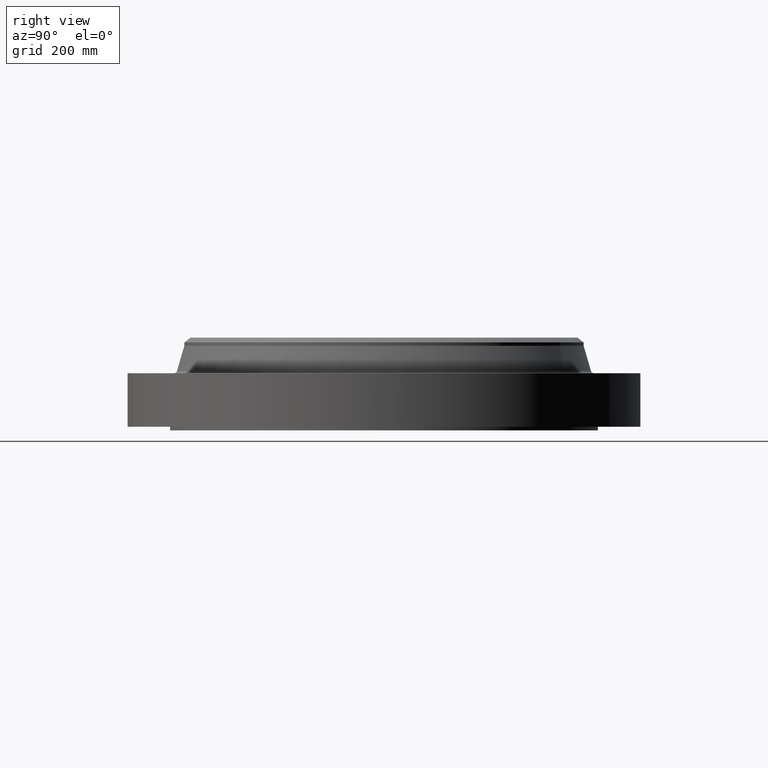
[diagram: clean part render]
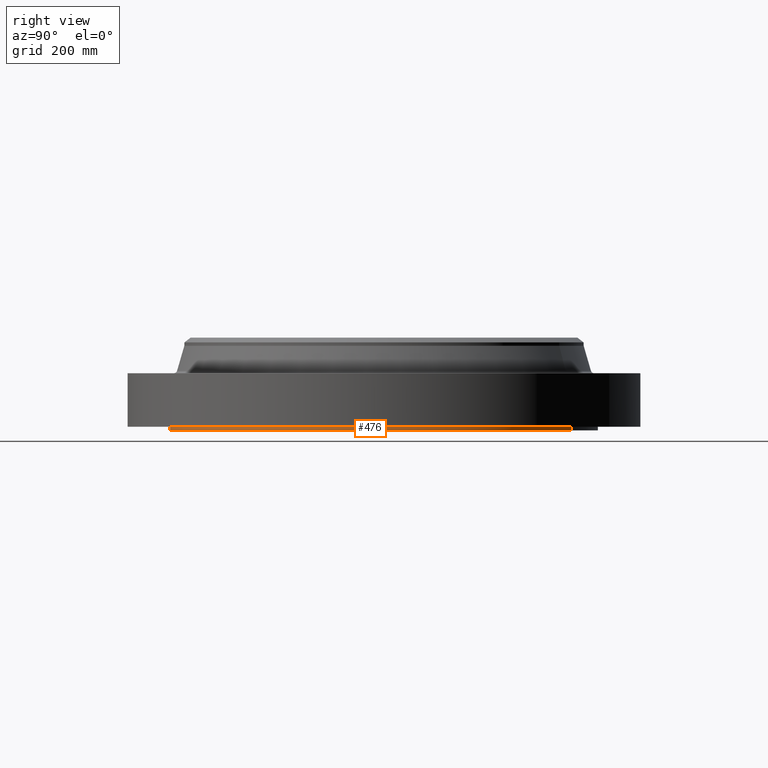
[diagram: same view with one face highlighted and labeled with its STEP entity id]
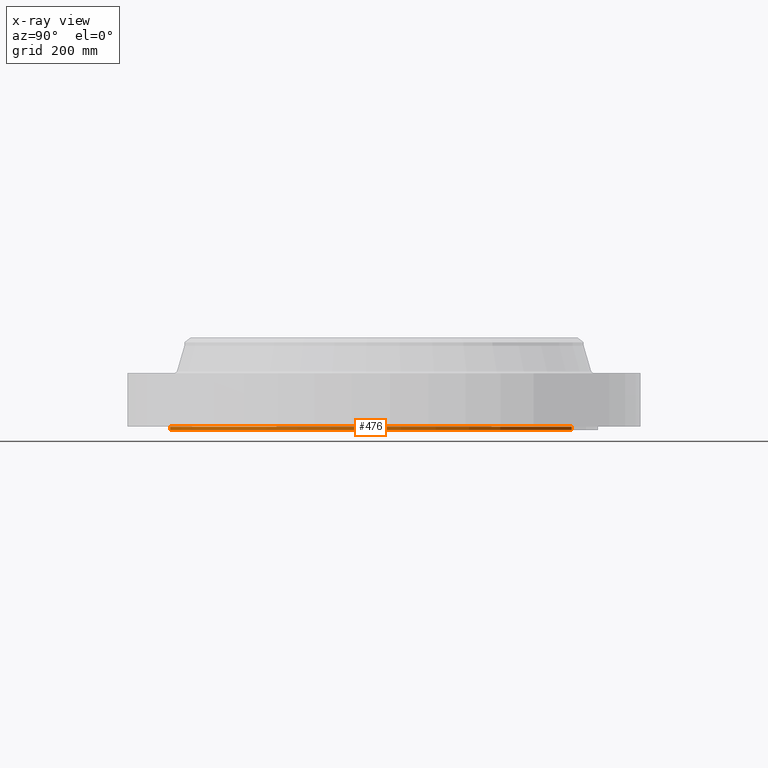
[diagram: x-ray of the same camera — body ghosted, the highlighted face saturated]
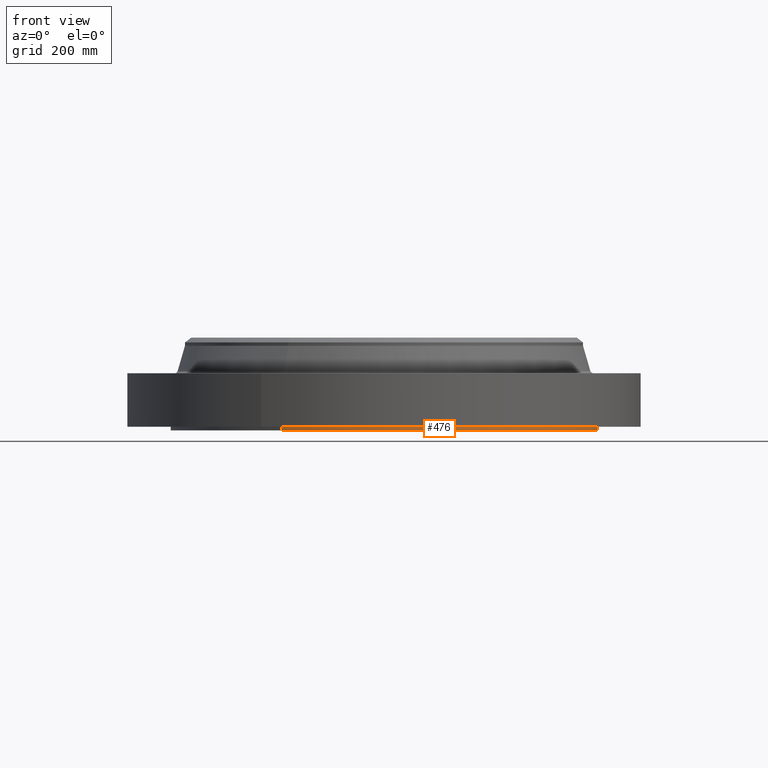
[diagram: same view with one face highlighted and labeled with its STEP entity id]
A machine part, right view. The second image highlights one B-rep face of the part: STEP entity #476.
The next image is the same camera in x-ray: the body ghosted, the highlighted face saturated — about 0% of this face is hidden behind the body in this view.
A second angle (front view) of the same face is appended — the face is thin or edge-on in the first view.
In plain terms, the highlighted cylindrical surface (partial cylindrical patch) has radius 381 mm, axis along (0, 0, -1).
Its self-contained STEP definition (entity closure, byte-faithful):
#422=AXIS2_PLACEMENT_3D('Circle Axis2P3D',#420,#421,$) ;
#437=AXIS2_PLACEMENT_3D('Cylinder Axis2P3D',#434,#435,#436) ;
#467=AXIS2_PLACEMENT_3D('Circle Axis2P3D',#465,#466,$) ;
#415=CARTESIAN_POINT('Vertex',(-7.19138307909,-13.1637384284,-0.250000000001)) ;
#417=CARTESIAN_POINT('Vertex',(7.19138307909,13.1637384284,-0.250000000001)) ;
#420=CARTESIAN_POINT('Axis2P3D Location',(0.,0.,-0.250000000001)) ;
#434=CARTESIAN_POINT('Axis2P3D Location',(0.,0.,3.05000000001)) ;
#439=CARTESIAN_POINT('Line Origine',(-7.19138307909,-13.1637384284,-0.125)) ;
#443=CARTESIAN_POINT('Vertex',(-7.19138307909,-13.1637384284,1.67844740731E-015)) ;
#450=CARTESIAN_POINT('Vertex',(7.19138307909,13.1637384284,1.67844740731E-015)) ;
#453=CARTESIAN_POINT('Line Origine',(7.19138307909,13.1637384284,-0.125)) ;
#465=CARTESIAN_POINT('Axis2P3D Location',(0.,0.,1.67844740731E-015)) ;
#421=DIRECTION('Axis2P3D Direction',(0.,0.,-0.0393700787402)) ;
#435=DIRECTION('Axis2P3D Direction',(0.,0.,-0.0393700787402)) ;
#436=DIRECTION('Axis2P3D XDirection',(0.0188750212049,0.0345504945626,0.)) ;
#440=DIRECTION('Vector Direction',(0.,0.,-0.0393700787402)) ;
#454=DIRECTION('Vector Direction',(0.,0.,-0.0393700787402)) ;
#466=DIRECTION('Axis2P3D Direction',(0.,0.,-0.0393700787402)) ;
#441=VECTOR('Line Direction',#440,0.0393700787402) ;
#455=VECTOR('Line Direction',#454,0.0393700787402) ;
#471=ORIENTED_EDGE('',*,*,#424,.F.) ;
#472=ORIENTED_EDGE('',*,*,#457,.T.) ;
#473=ORIENTED_EDGE('',*,*,#469,.T.) ;
#474=ORIENTED_EDGE('',*,*,#445,.F.) ;
#476=ADVANCED_FACE('PartBody',(#475),#438,.T.) ;
#423=CIRCLE('generated circle',#422,15.0000000001) ;
#468=CIRCLE('generated circle',#467,15.0000000001) ;
#438=CYLINDRICAL_SURFACE('generated cylinder',#437,15.0000000001) ;
#424=EDGE_CURVE('',#418,#416,#423,.T.) ;
#445=EDGE_CURVE('',#416,#444,#442,.F.) ;
#457=EDGE_CURVE('',#418,#451,#456,.F.) ;
#469=EDGE_CURVE('',#451,#444,#468,.T.) ;
#470=EDGE_LOOP('',(#471,#472,#473,#474)) ;
#475=FACE_OUTER_BOUND('',#470,.T.) ;
#442=LINE('Line',#439,#441) ;
#456=LINE('Line',#453,#455) ;
#416=VERTEX_POINT('',#415) ;
#418=VERTEX_POINT('',#417) ;
#444=VERTEX_POINT('',#443) ;
#451=VERTEX_POINT('',#450) ;